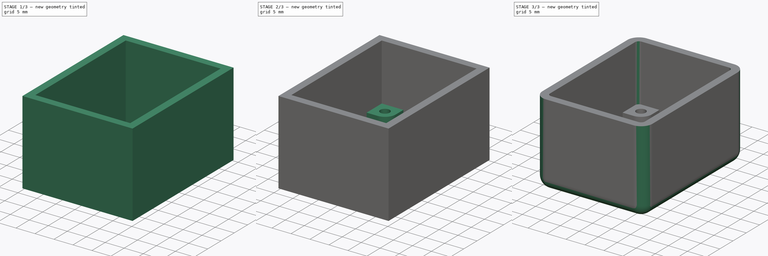
[diagram: build sequence overview — one tinted view per stage of 3, left to right]
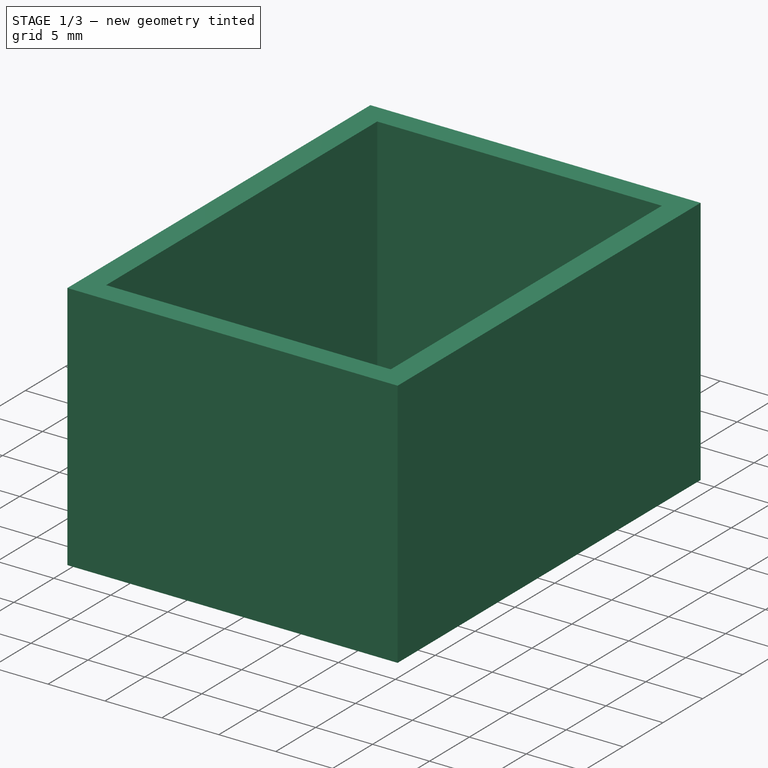
[diagram: stage 1 of 3 — iso view after this stage's code; geometry added in this stage tinted green]
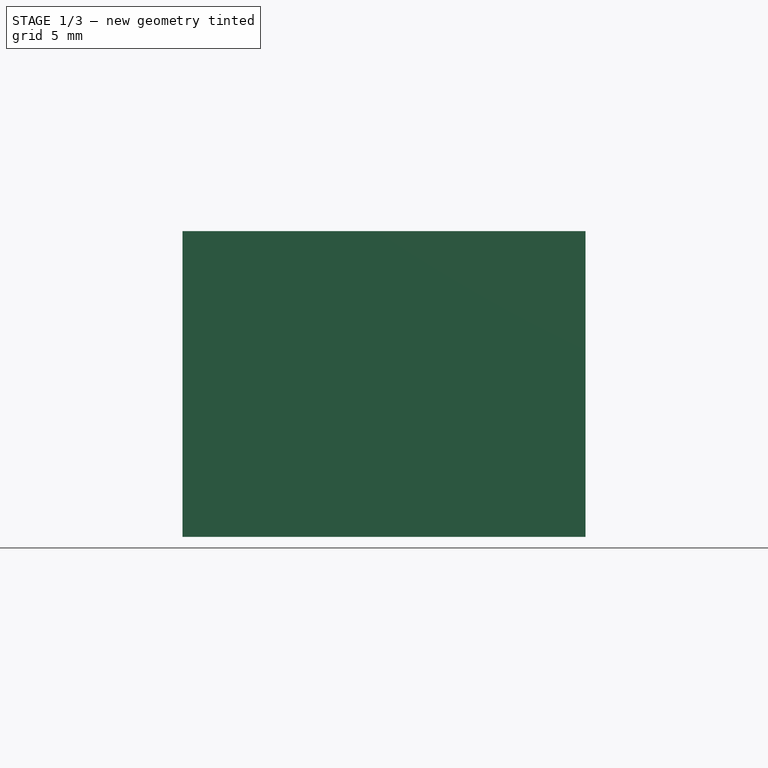
[diagram: stage 1 of 3 — front view after this stage's code; geometry added in this stage tinted green]
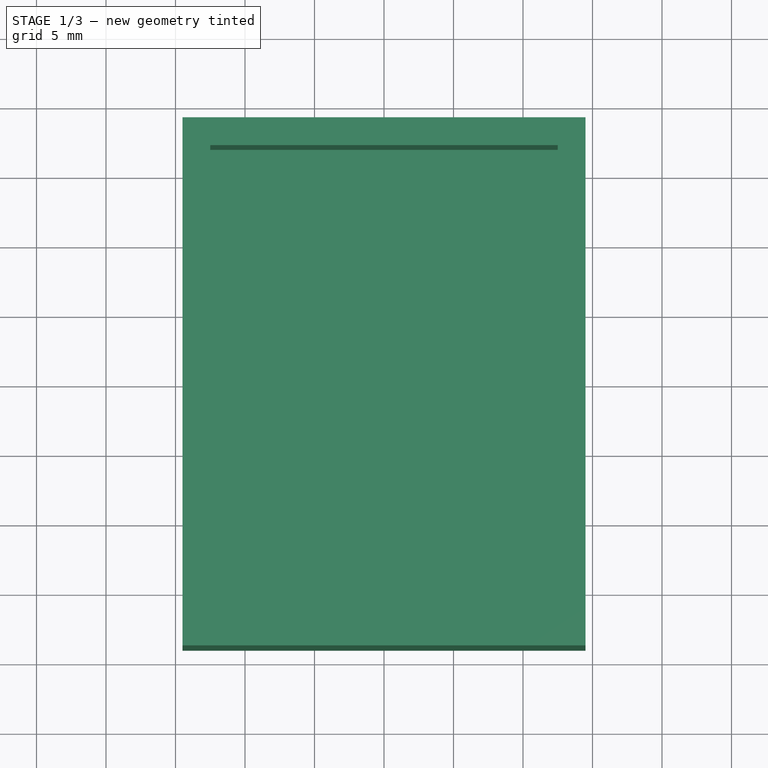
[diagram: stage 1 of 3 — top view after this stage's code; geometry added in this stage tinted green]
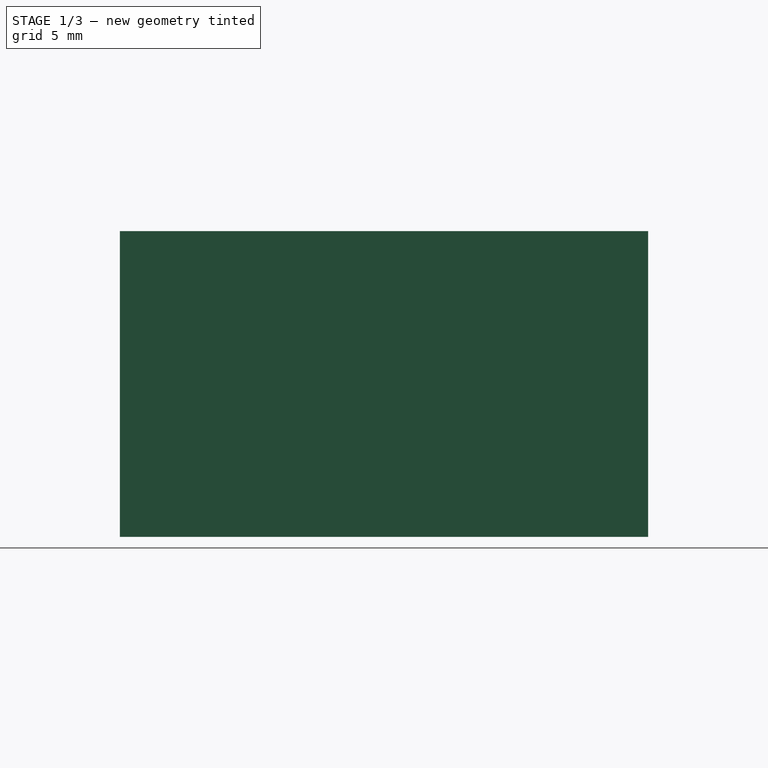
[diagram: stage 1 of 3 — right view after this stage's code; geometry added in this stage tinted green]
FCSTD DOCUMENT  (FreeCAD 0.19R24276 (Git))
Label: project_box_4_corner_mount
License: All rights reserved
LicenseURL: http://en.wikipedia.org/wiki/All_rights_reserved
objects: Sketcher::SketchObject×4, PartDesign::Plane×3, PartDesign::Fillet×3, PartDesign::Pad×2, PartDesign::Pocket×2, Spreadsheet::Sheet×1, PartDesign::Body×1
note: 22 computed .brp shape members not serialized (recipe doc carries the construction recipe); baked Part::Feature solids carry a one-line shape summary decoded from their .brp

FEATURE [Spreadsheet::Sheet] Spreadsheet
  cells = A1=Dimensions; B1=Width; C1=Length; D1=Height; E1=Wall thickness; A2=millimetres; B2(width)=25; C2(length)=34; D2(height)=20; E2(wall_thickness)=2; A4=PCB specifications; B4=Height; C4=Thickness; D4=mounting hole; E4=hole wall; A5=millimetres; B5(PCB_height)=5; C5(PCB_thickness)=1.6; D5(PCB_hole)=2.5; E5(PCB_hole_wall)=1.6; A7=additional; B7=internal fillet; A8=millimetres; B8(internal_fillet)=1
FEATURE [Sketcher::SketchObject] Sketch  label="box_body_outline"
  FullyConstrained = true
  MapMode = 5
  Support = -> [XY_Plane]
  expr: Constraints[10] = <<Spreadsheet>>.width + 2 * <<Spreadsheet>>.wall_thickness
  expr: Constraints[8] = <<Spreadsheet>>.length + 2 * <<Spreadsheet>>.wall_thickness
  sketch-geometry (4):
    g0: LineSegment StartX=-14.5 StartY=19 StartZ=0 EndX=14.5 EndY=19 EndZ=0
    g1: LineSegment StartX=14.5 StartY=19 StartZ=0 EndX=14.5 EndY=-19 EndZ=0
    g2: LineSegment StartX=14.5 StartY=-19 StartZ=0 EndX=-14.5 EndY=-19 EndZ=0
    g3: LineSegment StartX=-14.5 StartY=-19 StartZ=0 EndX=-14.5 EndY=19 EndZ=0
  constraints (11):
    c: Coincident(g0,g1)
    c: Coincident(g1,g2)
    c: Coincident(g2,g3)
    c: Coincident(g3,g0)
    c: Horizontal(g0)
    c: Horizontal(g2)
    c: Vertical(g1)
    c: Vertical(g3)
    c: Distance(g1) = 38
    c: Symmetric(g0,g2,g-1)
    c: Distance(g2) = 29
FEATURE [PartDesign::Pad] Pad  label="box_body"
  Direction = (1,1,1)
  Length = 22
  Length2 = 100
  Profile = -> Sketch
  Type = 0
  expr: Length = <<Spreadsheet>>.height + <<Spreadsheet>>.wall_thickness
FEATURE [PartDesign::Plane] DatumPlane  label="box_body_top_plane"
  AttachmentOffset = pos=(0,0,22) rot=(0,0,1;0rad)
  Length = 60
  MapMode = 5
  Placement = pos=(0,0,22) rot=(0,0,1;0rad)
  ResizeMode = 0
  Support = -> [XY_Plane]
  Width = 60
  expr: .AttachmentOffset.Base.z = <<Spreadsheet>>.height + <<Spreadsheet>>.wall_thickness
FEATURE [Sketcher::SketchObject] Sketch001  label="box_cavity_outline"
  FullyConstrained = true
  MapMode = 5
  Placement = pos=(0,0,22) rot=(0,0,1;0rad)
  Support = -> [DatumPlane]
  expr: Constraints[10] = <<Spreadsheet>>.width
  expr: Constraints[9] = <<Spreadsheet>>.length
  sketch-geometry (4):
    g0: LineSegment StartX=-12.5 StartY=17 StartZ=0 EndX=12.5 EndY=17 EndZ=0
    g1: LineSegment StartX=12.5 StartY=17 StartZ=0 EndX=12.5 EndY=-17 EndZ=0
    g2: LineSegment StartX=12.5 StartY=-17 StartZ=0 EndX=-12.5 EndY=-17 EndZ=0
    g3: LineSegment StartX=-12.5 StartY=-17 StartZ=0 EndX=-12.5 EndY=17 EndZ=0
  constraints (11):
    c: Coincident(g0,g1)
    c: Coincident(g1,g2)
    c: Coincident(g2,g3)
    c: Coincident(g3,g0)
    c: Horizontal(g0)
    c: Horizontal(g2)
    c: Vertical(g1)
    c: Vertical(g3)
    c: Symmetric(g0,g2,g-1)
    c: Distance(g1) = 34
    c: Distance(g2) = 25
FEATURE [PartDesign::Pocket] Pocket  label="box_cavity"
  BaseFeature = -> Pad
  Length = 20
  Length2 = 100
  Profile = -> Sketch001
  Type = 0
  expr: Length = <<Spreadsheet>>.height
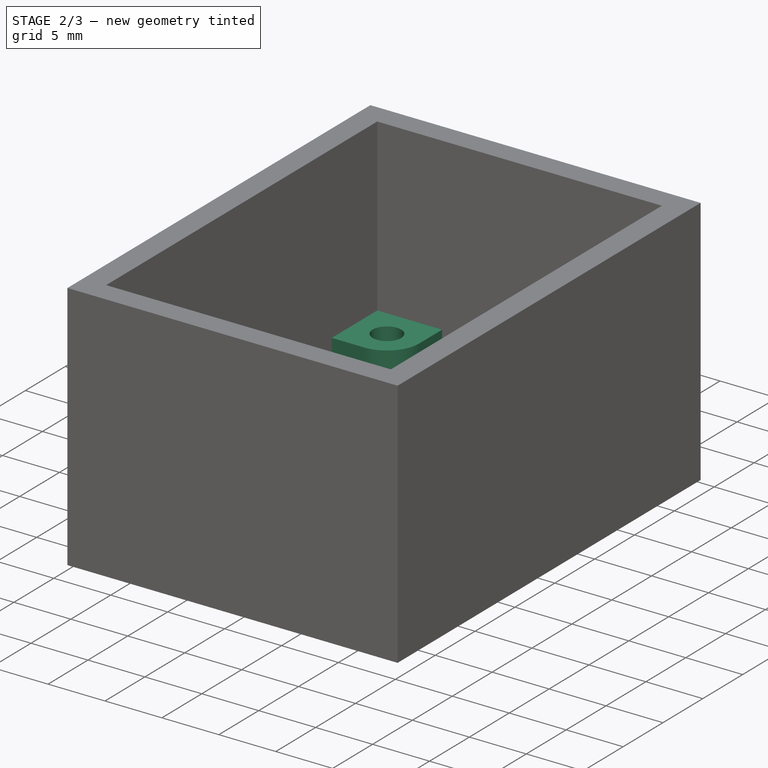
[diagram: stage 2 of 3 — iso view after this stage's code; geometry added in this stage tinted green]
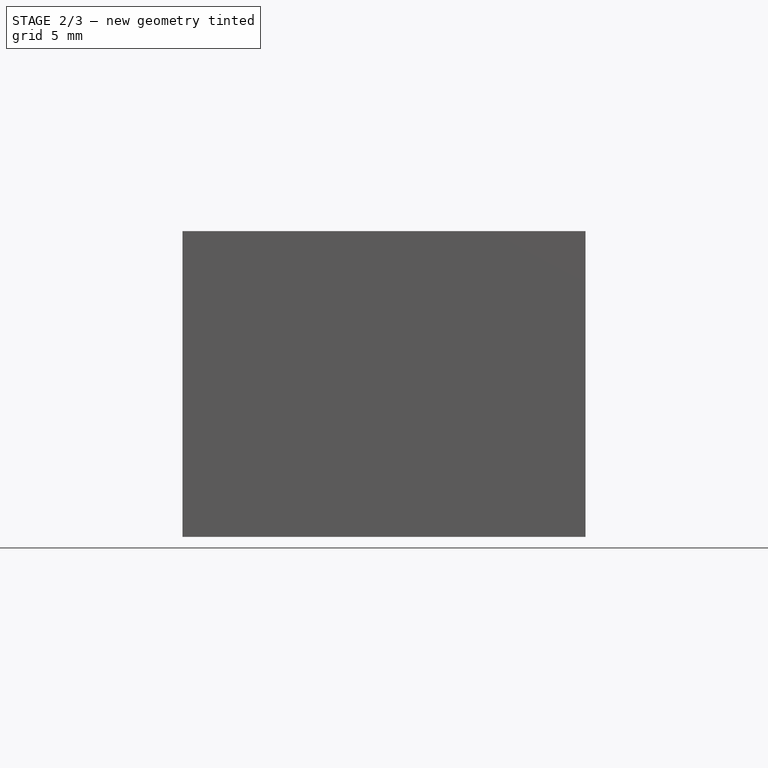
[diagram: stage 2 of 3 — front view after this stage's code; geometry added in this stage tinted green]
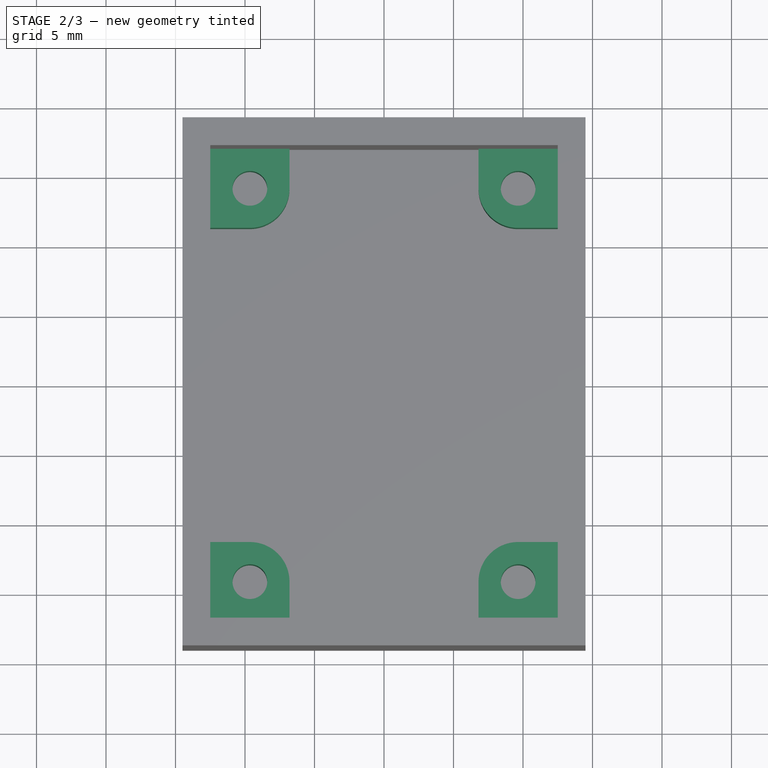
[diagram: stage 2 of 3 — top view after this stage's code; geometry added in this stage tinted green]
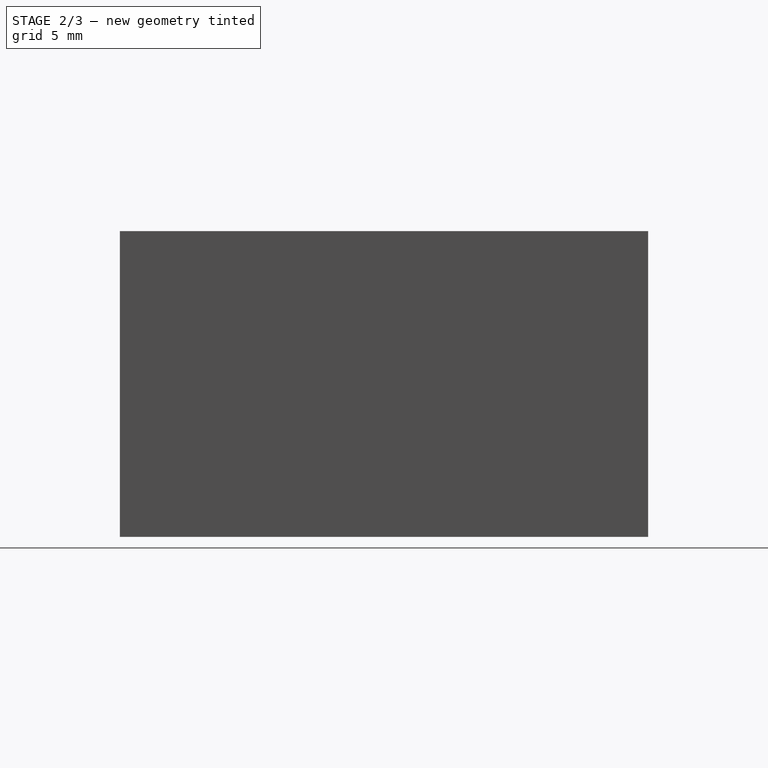
[diagram: stage 2 of 3 — right view after this stage's code; geometry added in this stage tinted green]
FEATURE [PartDesign::Plane] DatumPlane001  label="box_body_bottom_plane"
  AttachmentOffset = pos=(0,0,2) rot=(0,0,1;0rad)
  Length = 60
  MapMode = 5
  Placement = pos=(0,0,2) rot=(0,0,1;0rad)
  ResizeMode = 0
  Support = -> [XY_Plane]
  Width = 60
  expr: .AttachmentOffset.Base.z = <<Spreadsheet>>.wall_thickness
FEATURE [Sketcher::SketchObject] Sketch002  label="PCB_posts_outline"
  FullyConstrained = true
  MapMode = 5
  Placement = pos=(0,0,2) rot=(0,0,1;0rad)
  Support = -> [DatumPlane001]
  expr: Constraints[54] = <<Spreadsheet>>.PCB_hole + <<Spreadsheet>>.PCB_hole_wall * 2
  expr: Constraints[10] = <<Spreadsheet>>.width
  expr: Constraints[9] = <<Spreadsheet>>.length
  sketch-geometry (20):
    g0: LineSegment StartX=-12.5 StartY=17 StartZ=0 EndX=12.5 EndY=17 EndZ=0
    g1: LineSegment StartX=12.5 StartY=17 StartZ=0 EndX=12.5 EndY=-17 EndZ=0
    g2: LineSegment StartX=12.5 StartY=-17 StartZ=0 EndX=-12.5 EndY=-17 EndZ=0
    g3: LineSegment StartX=-12.5 StartY=-17 StartZ=0 EndX=-12.5 EndY=17 EndZ=0
    g4: LineSegment StartX=-12.5 StartY=17 StartZ=0 EndX=-6.8 EndY=17 EndZ=0
    g5: LineSegment StartX=-6.8 StartY=17 StartZ=0 EndX=-6.8 EndY=11.3 EndZ=0
    g6: LineSegment StartX=-6.8 StartY=11.3 StartZ=0 EndX=-12.5 EndY=11.3 EndZ=0
    g7: LineSegment StartX=-12.5 StartY=11.3 StartZ=0 EndX=-12.5 EndY=17 EndZ=0
    g8: LineSegment StartX=12.5 StartY=17 StartZ=0 EndX=6.8 EndY=17 EndZ=0
    g9: LineSegment StartX=6.8 StartY=17 StartZ=0 EndX=6.8 EndY=11.3 EndZ=0
    g10: LineSegment StartX=6.8 StartY=11.3 StartZ=0 EndX=12.5 EndY=11.3 EndZ=0
    g11: LineSegment StartX=12.5 StartY=11.3 StartZ=0 EndX=12.5 EndY=17 EndZ=0
    g12: LineSegment StartX=12.5 StartY=-17 StartZ=0 EndX=6.8 EndY=-17 EndZ=0
    g13: LineSegment StartX=6.8 StartY=-17 StartZ=0 EndX=6.8 EndY=-11.3 EndZ=0
    g14: LineSegment StartX=6.8 StartY=-11.3 StartZ=0 EndX=12.5 EndY=-11.3 EndZ=0
    g15: LineSegment StartX=12.5 StartY=-11.3 StartZ=0 EndX=12.5 EndY=-17 EndZ=0
    g16: LineSegment StartX=-12.5 StartY=-17 StartZ=0 EndX=-6.8 EndY=-17 EndZ=0
    g17: LineSegment StartX=-6.8 StartY=-17 StartZ=0 EndX=-6.8 EndY=-11.3 EndZ=0
    g18: LineSegment StartX=-6.8 StartY=-11.3 StartZ=0 EndX=-12.5 EndY=-11.3 EndZ=0
    g19: LineSegment StartX=-12.5 StartY=-11.3 StartZ=0 EndX=-12.5 EndY=-17 EndZ=0
  constraints (55):
    c: Coincident(g0,g1)
    c: Coincident(g1,g2)
    c: Coincident(g2,g3)
    c: Coincident(g3,g0)
    c: Horizontal(g0)
    c: Horizontal(g2)
    c: Vertical(g1)
    c: Vertical(g3)
    c: Symmetric(g0,g2,g-1)
    c: Distance(g1) = 34
    c: Distance(g2) = 25
    c: Coincident(g4,g5)
    c: Coincident(g5,g6)
    c: Coincident(g6,g7)
    c: Coincident(g7,g4)
    c: Horizontal(g4)
    c: Horizontal(g6)
    c: Vertical(g5)
    c: Vertical(g7)
    c: Coincident(g4,g0)
    c: Coincident(g8,g9)
    c: Coincident(g9,g10)
    c: Coincident(g10,g11)
    c: Coincident(g11,g8)
    c: Horizontal(g8)
    c: Horizontal(g10)
    c: Vertical(g9)
    c: Vertical(g11)
    c: Coincident(g8,g0)
    c: Coincident(g12,g13)
    c: Coincident(g13,g14)
    c: Coincident(g14,g15)
    c: Coincident(g15,g12)
    c: Horizontal(g12)
    c: Horizontal(g14)
    c: Vertical(g13)
    c: Vertical(g15)
    c: Coincident(g12,g1)
    c: Coincident(g16,g17)
    c: Coincident(g17,g18)
    c: Coincident(g18,g19)
    c: Coincident(g19,g16)
    c: Horizontal(g16)
    c: Horizontal(g18)
    c: Vertical(g17)
    c: Vertical(g19)
    c: Coincident(g16,g2)
    c: Equal(g18,g6)
    c: Equal(g6,g10)
    c: Equal(g10,g5)
    c: Equal(g5,g9)
    c: Equal(g9,g13)
    c: Equal(g13,g17)
    c: Equal(g17,g14)
    c: Distance(g5) = 5.7
FEATURE [PartDesign::Pad] Pad001  label="PCB_posts"
  BaseFeature = -> Pocket
  Direction = (1,1,1)
  Length = 5
  Length2 = 100
  Profile = -> Sketch002
  Type = 0
  expr: Length = <<Spreadsheet>>.PCB_height
FEATURE [PartDesign::Plane] DatumPlane002  label="PCB_bottom_plane"
  AttachmentOffset = pos=(0,0,7) rot=(0,0,1;0rad)
  Length = 60
  MapMode = 5
  Placement = pos=(0,0,7) rot=(0,0,1;0rad)
  ResizeMode = 0
  Support = -> [XY_Plane]
  Width = 60
  expr: .AttachmentOffset.Base.z = <<Spreadsheet>>.wall_thickness + <<Spreadsheet>>.PCB_height
FEATURE [Sketcher::SketchObject] Sketch003  label="PCB_post_holes_outline"
  FullyConstrained = true
  MapMode = 5
  Placement = pos=(0,0,7) rot=(0,0,1;0rad)
  Support = -> [DatumPlane002]
  expr: Constraints[18] = <<Spreadsheet>>.length - <<Spreadsheet>>.PCB_hole - <<Spreadsheet>>.PCB_hole_wall * 2
  expr: Constraints[17] = <<Spreadsheet>>.width - <<Spreadsheet>>.PCB_hole - <<Spreadsheet>>.PCB_hole_wall * 2
  expr: Constraints[16] = <<Spreadsheet>>.PCB_hole
  sketch-geometry (8):
    g0: LineSegment StartX=-9.65 StartY=14.15 StartZ=0 EndX=9.65 EndY=14.15 EndZ=0
    g1: LineSegment StartX=9.65 StartY=14.15 StartZ=0 EndX=9.65 EndY=-14.15 EndZ=0
    g2: LineSegment StartX=9.65 StartY=-14.15 StartZ=0 EndX=-9.65 EndY=-14.15 EndZ=0
    g3: LineSegment StartX=-9.65 StartY=-14.15 StartZ=0 EndX=-9.65 EndY=14.15 EndZ=0
    g4: Circle CenterX=-9.65 CenterY=14.15 CenterZ=0 NormalX=0 NormalY=0 NormalZ=1 AngleXU=0 Radius=1.25
    g5: Circle CenterX=9.65 CenterY=14.15 CenterZ=0 NormalX=0 NormalY=0 NormalZ=1 AngleXU=0 Radius=1.25
    g6: Circle CenterX=9.65 CenterY=-14.15 CenterZ=0 NormalX=0 NormalY=0 NormalZ=1 AngleXU=0 Radius=1.25
    g7: Circle CenterX=-9.65 CenterY=-14.15 CenterZ=0 NormalX=0 NormalY=0 NormalZ=1 AngleXU=0 Radius=1.25
  constraints (19):
    c: Coincident(g0,g1)
    c: Coincident(g1,g2)
    c: Coincident(g2,g3)
    c: Coincident(g3,g0)
    c: Horizontal(g0)
    c: Horizontal(g2)
    c: Vertical(g1)
    c: Vertical(g3)
    c: Symmetric(g0,g2,g-1)
    c: Coincident(g4,g0)
    c: Coincident(g5,g0)
    c: Coincident(g6,g1)
    c: Coincident(g7,g2)
    c: Equal(g7,g6)
    c: Equal(g6,g5)
    c: Equal(g5,g4)
    c: Diameter(g4) = 2.5
    c: Distance(g0) = 19.3
    c: Distance(g1) = 28.3
FEATURE [PartDesign::Pocket] Pocket001  label="PCB_post_holes"
  BaseFeature = -> Pad001
  Length = 5
  Length2 = 100
  Profile = -> Sketch003
  Type = 0
  expr: Length = <<Spreadsheet>>.PCB_height
FEATURE [PartDesign::Fillet] Fillet  label="PCB_post_fillet"
  Base = -> Pocket001 [Edge44,Edge53,Edge64,Edge60]
  BaseFeature = -> Pocket001
  Radius = 2.85
  SupportTransform = false
  expr: Radius = <<Spreadsheet>>.PCB_hole / 2 + <<Spreadsheet>>.PCB_hole_wall
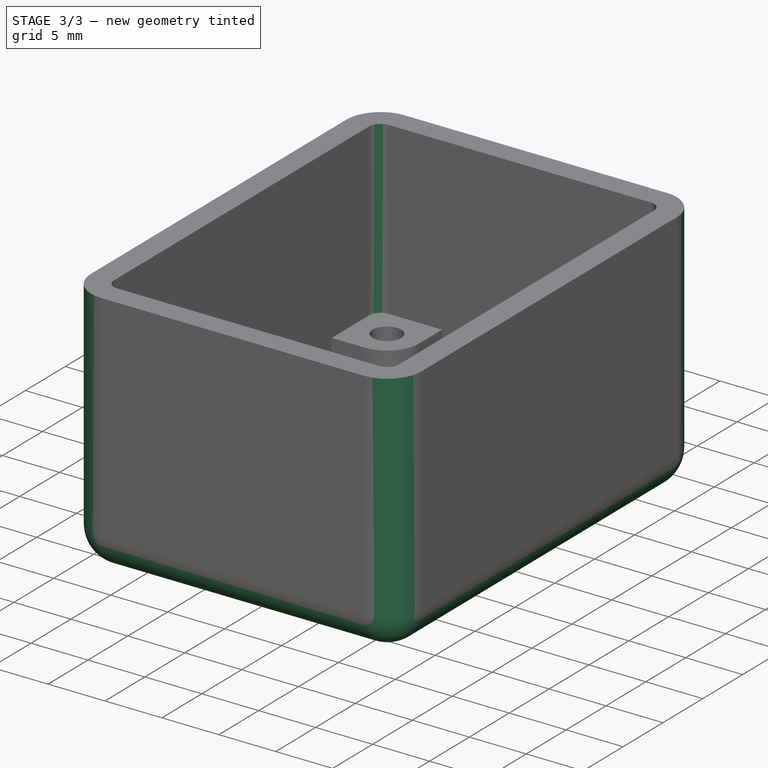
[diagram: stage 3 of 3 — iso view after this stage's code; geometry added in this stage tinted green]
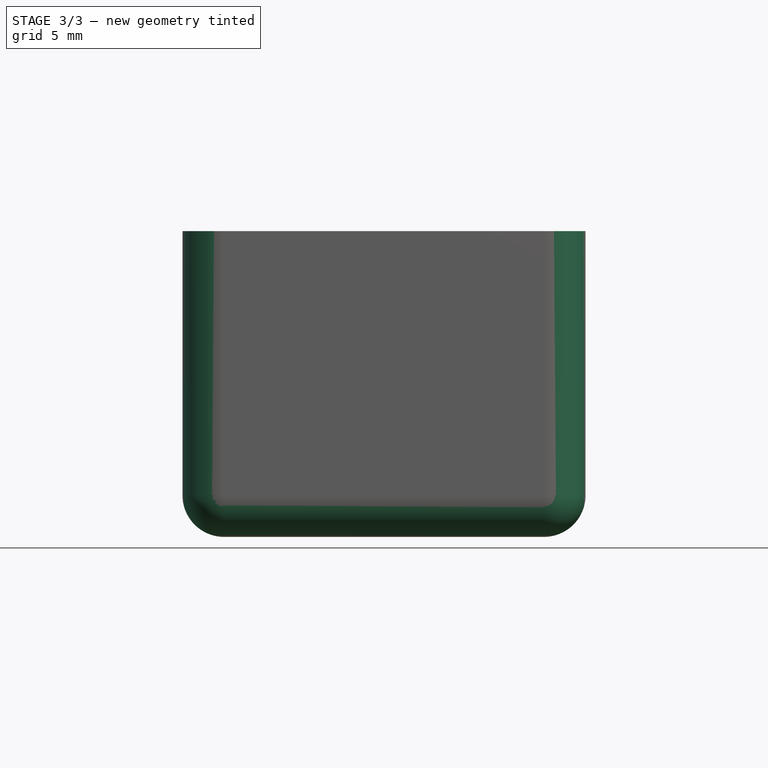
[diagram: stage 3 of 3 — front view after this stage's code; geometry added in this stage tinted green]
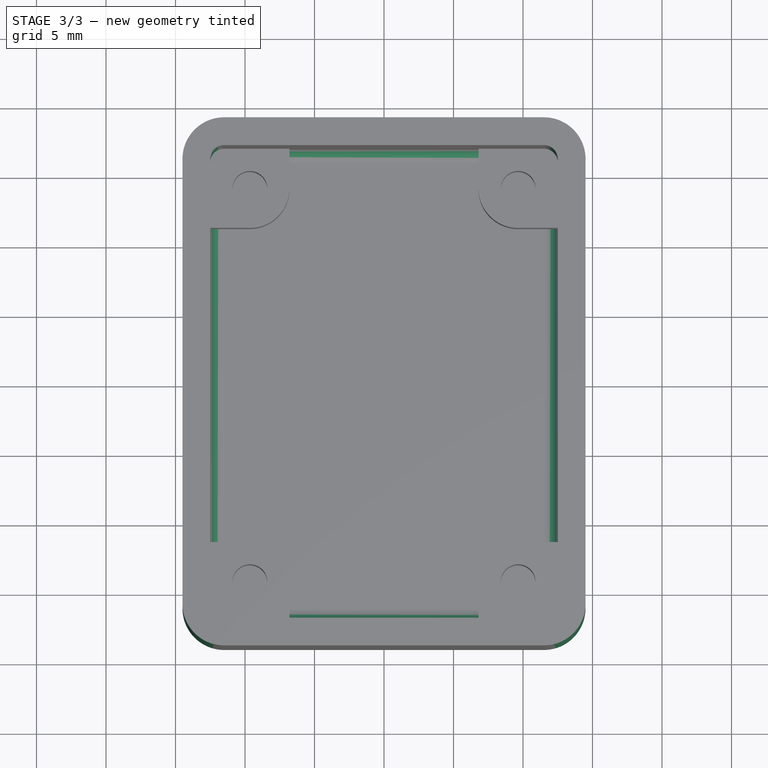
[diagram: stage 3 of 3 — top view after this stage's code; geometry added in this stage tinted green]
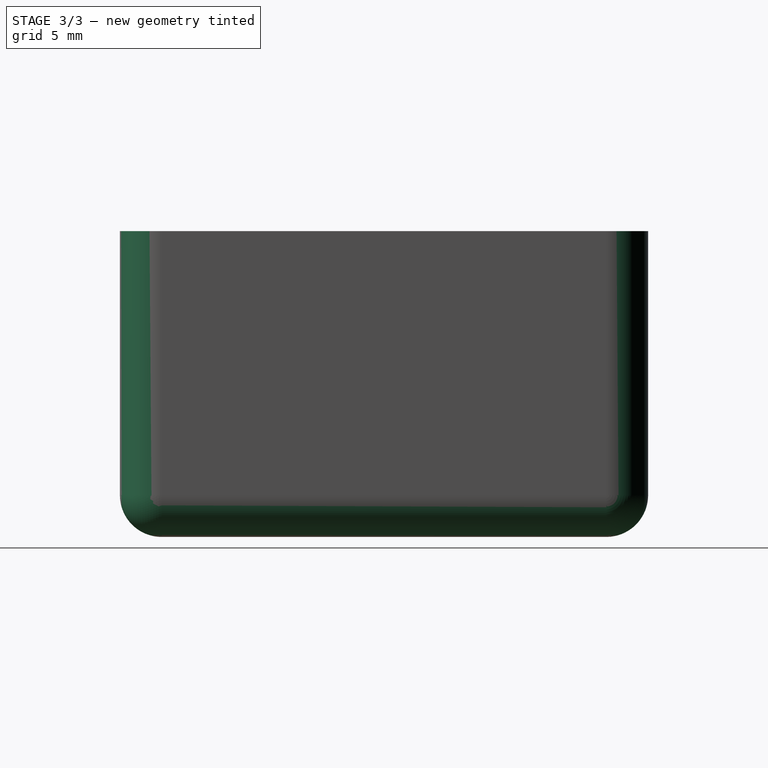
[diagram: stage 3 of 3 — right view after this stage's code; geometry added in this stage tinted green]
FEATURE [PartDesign::Fillet] Fillet001  label="internal_fillet"
  Base = -> Fillet [Edge30,Edge14,Edge24,Edge35,Edge17,Edge53,Edge13,Edge21]
  BaseFeature = -> Fillet
  Radius = 1
  SupportTransform = false
  expr: Radius = <<Spreadsheet>>.internal_fillet
FEATURE [PartDesign::Fillet] Fillet002
  Base = -> Fillet001 [Edge85,Edge84,Edge89,Edge88,Edge90,Edge86,Edge87,Edge83]
  BaseFeature = -> Fillet001
  Radius = 3
  SupportTransform = false
  expr: Radius = <<Spreadsheet>>.internal_fillet + <<Spreadsheet>>.wall_thickness
FEATURE [PartDesign::Body] Body
  Group = -> [Sketch,Pad,DatumPlane,Sketch001,Pocket,DatumPlane001,Sketch002,Pad001,DatumPlane002,Sketch003,Pocket001,Fillet,Fillet001,Fillet002]
  Origin = -> Origin
  Tip = -> Fillet002
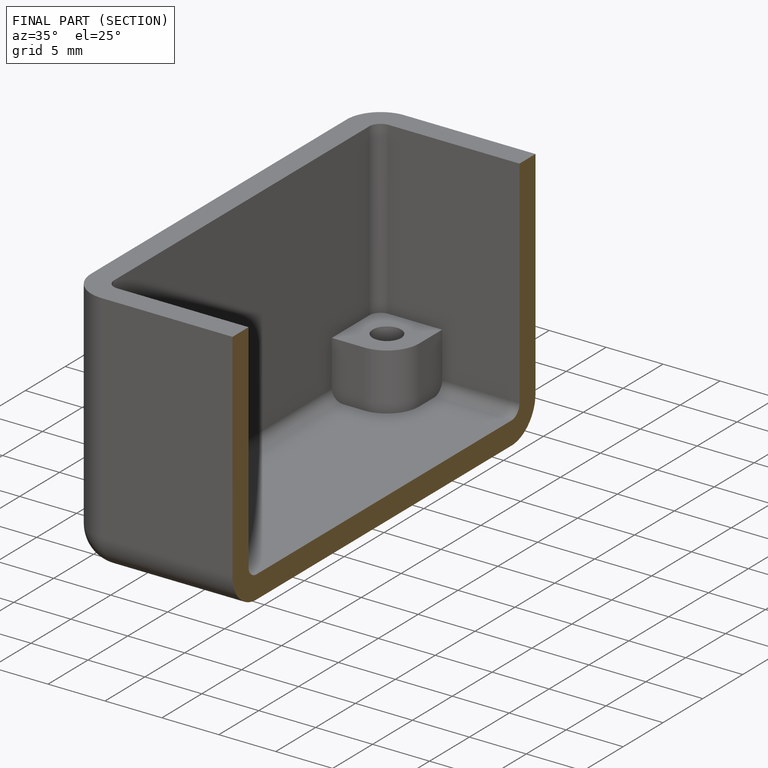
[diagram: finished part — half-section view (interior)]
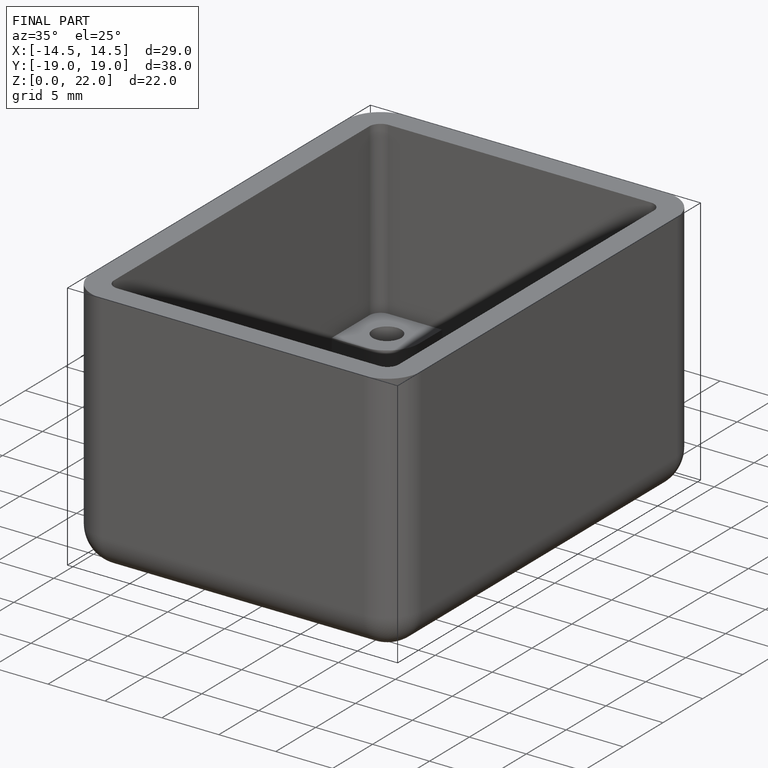
[diagram: finished part — iso view with bounding-box wireframe]
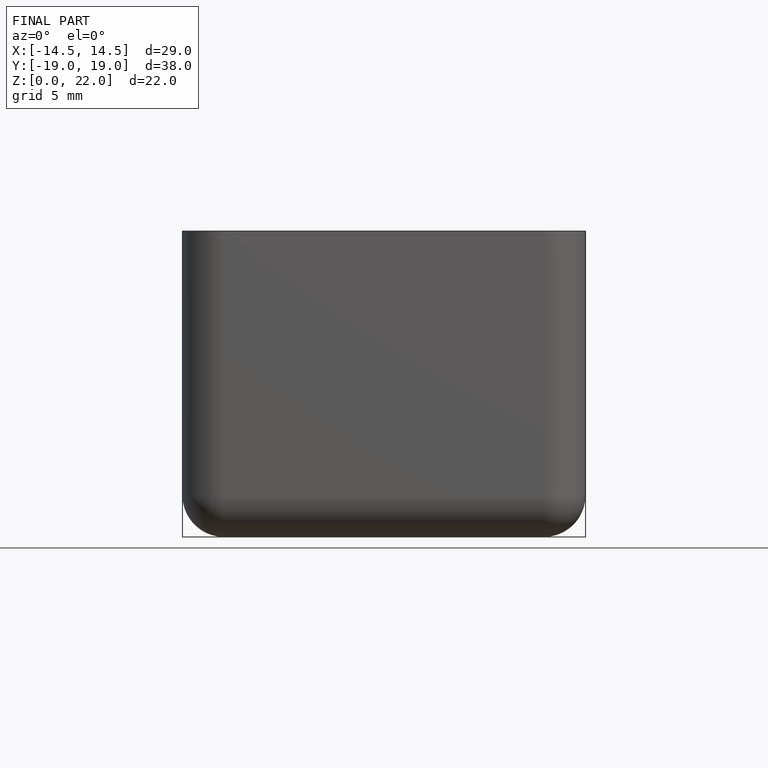
[diagram: finished part — front view with bounding-box wireframe]
